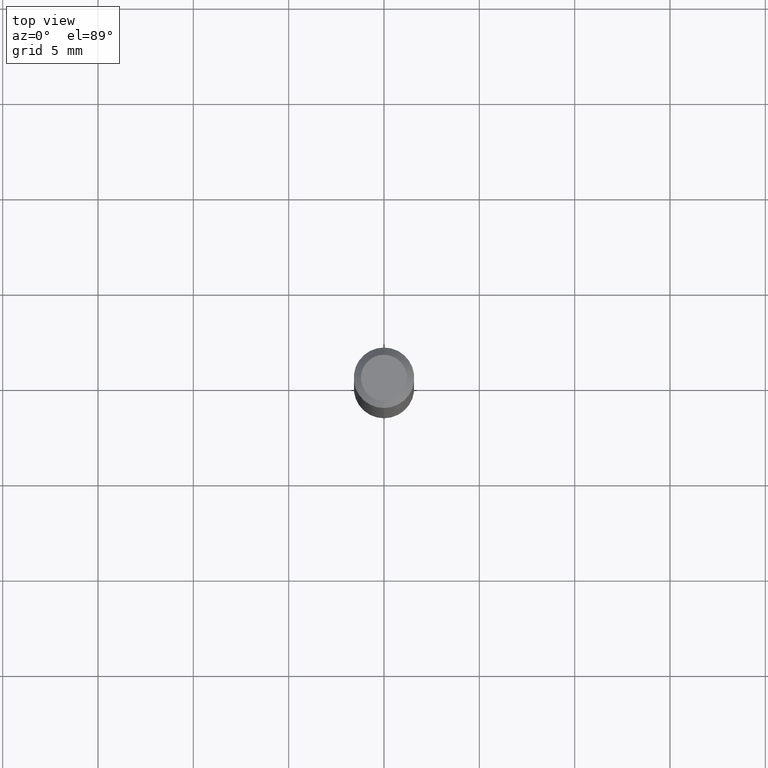
[diagram: clean part render]
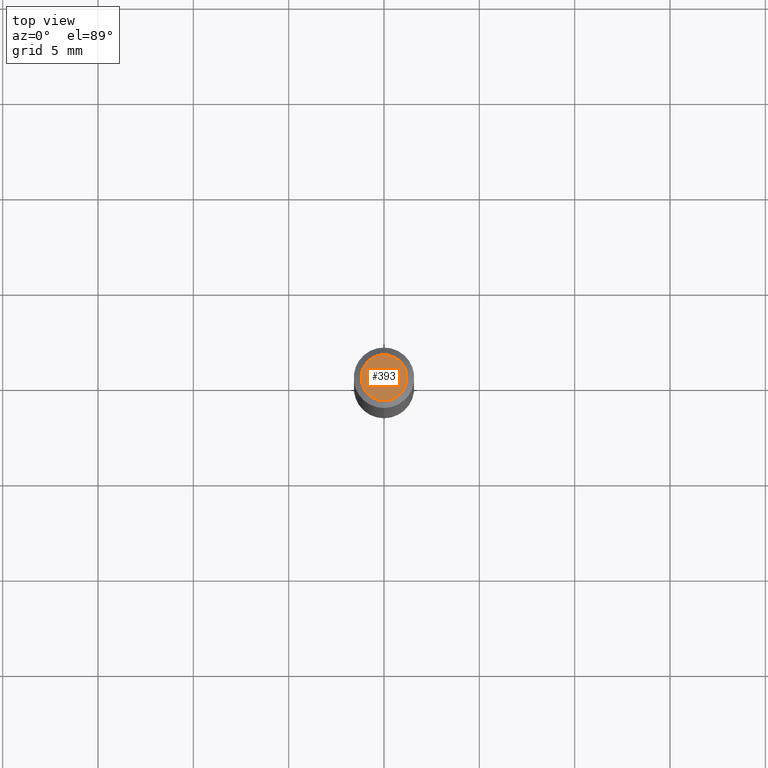
[diagram: same view with one face highlighted and labeled with its STEP entity id]
A machine part, top view. The second image highlights one B-rep face of the part: STEP entity #393.
In plain terms, the highlighted planar face has unit normal (0, -0, -1).
Its self-contained STEP definition (entity closure, byte-faithful):
#44 = CARTESIAN_POINT ( 'NONE',  ( 2.166637795141839725E-46, -3.093402734052845134E-32, -8.859831485701589934E-18 ) ) ;
#51 = CARTESIAN_POINT ( 'NONE',  ( 3.840629472727447874E-16, 0.04749999999999999362, -1.747056831868805136E-16 ) ) ;
#72 = DIRECTION ( 'NONE',  ( -6.982962677686266711E-15, -1.000000000000000000, 3.491491614761661422E-15 ) ) ;
#75 = CARTESIAN_POINT ( 'NONE',  ( 2.166637795141839725E-46, -3.093402734052845134E-32, -8.859831485701589934E-18 ) ) ;
#96 = VERTEX_POINT ( 'NONE', #51 ) ;
#124 = ORIENTED_EDGE ( 'NONE', *, *, #166, .T. ) ;
#131 = CIRCLE ( 'NONE', #431, 0.04749999999999999362 ) ;
#142 = VERTEX_POINT ( 'NONE', #253 ) ;
#147 = DIRECTION ( 'NONE',  ( -2.445461630549588864E-29, 3.491491614761661422E-15, 1.000000000000000000 ) ) ;
#166 = EDGE_CURVE ( 'NONE', #142, #96, #344, .T. ) ;
#186 = EDGE_LOOP ( 'NONE', ( #483, #124 ) ) ;
#211 = PLANE ( 'NONE',  #283 ) ;
#213 = CARTESIAN_POINT ( 'NONE',  ( 3.316907271900976096E-16, 0.04749999999999999362, -1.702757674440297279E-16 ) ) ;
#230 = FACE_OUTER_BOUND ( 'NONE', #186, .T. ) ;
#241 = AXIS2_PLACEMENT_3D ( 'NONE', #75, #147, #310 ) ;
#253 = CARTESIAN_POINT ( 'NONE',  ( -3.773273898774340269E-16, -0.04749999999999999362, 1.569860202154772968E-16 ) ) ;
#283 = AXIS2_PLACEMENT_3D ( 'NONE', #213, #482, #288 ) ;
#288 = DIRECTION ( 'NONE',  ( 6.982962677686265922E-15, 1.000000000000000000, -3.491491614761661816E-15 ) ) ;
#310 = DIRECTION ( 'NONE',  ( -6.982962677686266711E-15, -1.000000000000000000, 3.491491614761661422E-15 ) ) ;
#344 = CIRCLE ( 'NONE', #241, 0.04749999999999999362 ) ;
#387 = EDGE_CURVE ( 'NONE', #96, #142, #131, .T. ) ;
#393 = ADVANCED_FACE ( 'NONE', ( #230 ), #211, .F. ) ;
#427 = DIRECTION ( 'NONE',  ( -2.445461630549588864E-29, 3.491491614761661422E-15, 1.000000000000000000 ) ) ;
#431 = AXIS2_PLACEMENT_3D ( 'NONE', #44, #427, #72 ) ;
#482 = DIRECTION ( 'NONE',  ( 2.445461630549588584E-29, -3.491491614761661816E-15, -1.000000000000000000 ) ) ;
#483 = ORIENTED_EDGE ( 'NONE', *, *, #387, .T. ) ;